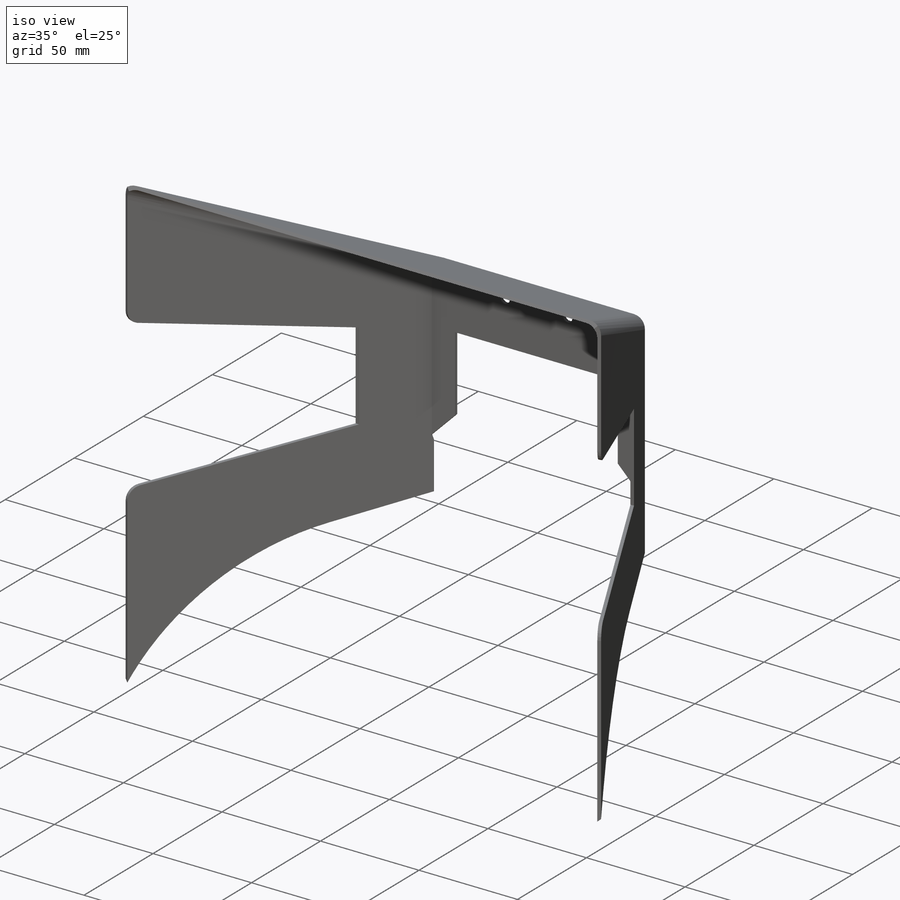
[diagram: iso view]
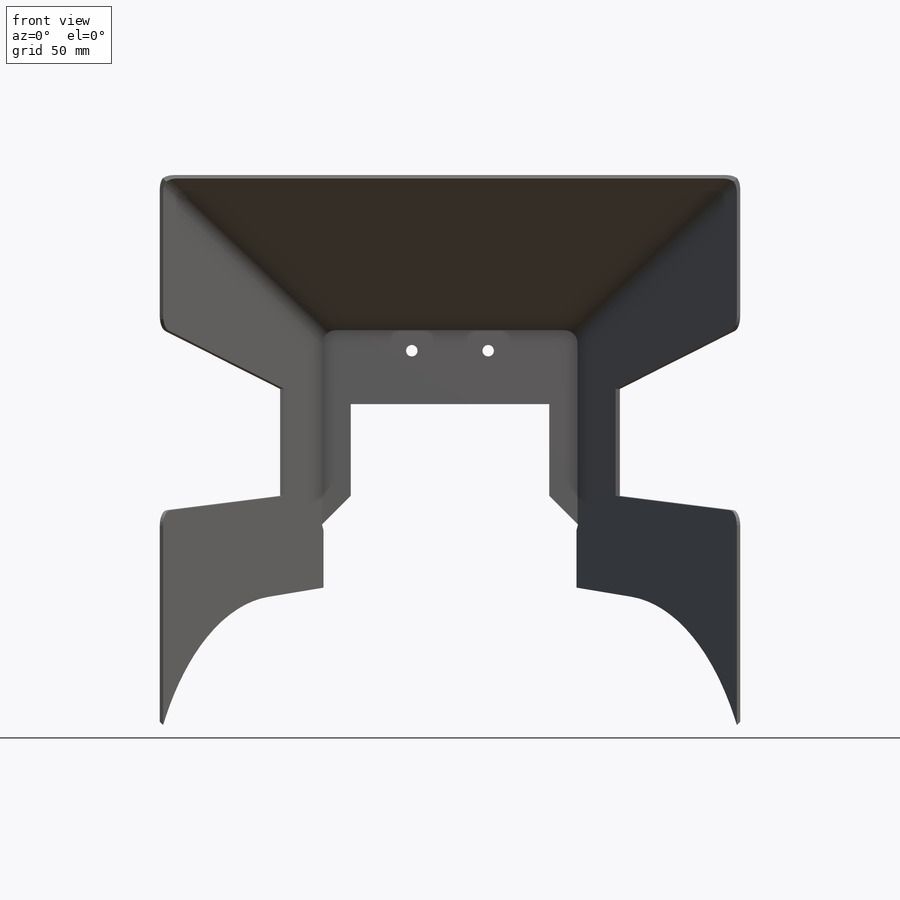
[diagram: front view]
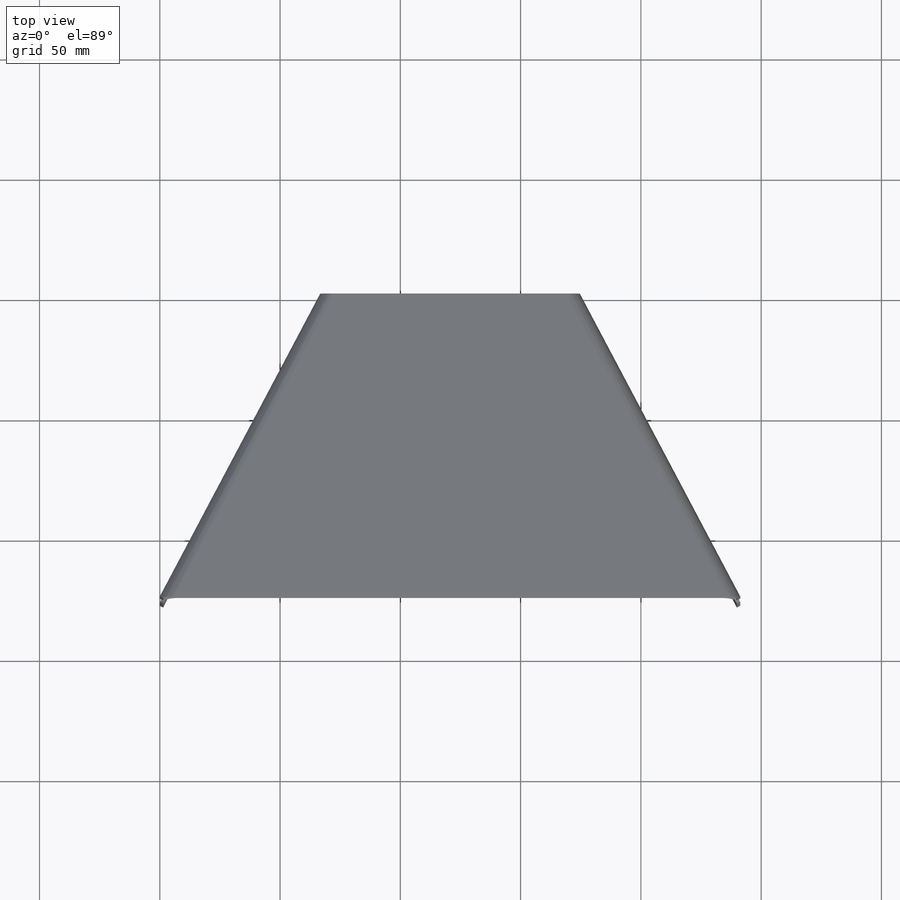
[diagram: top view]
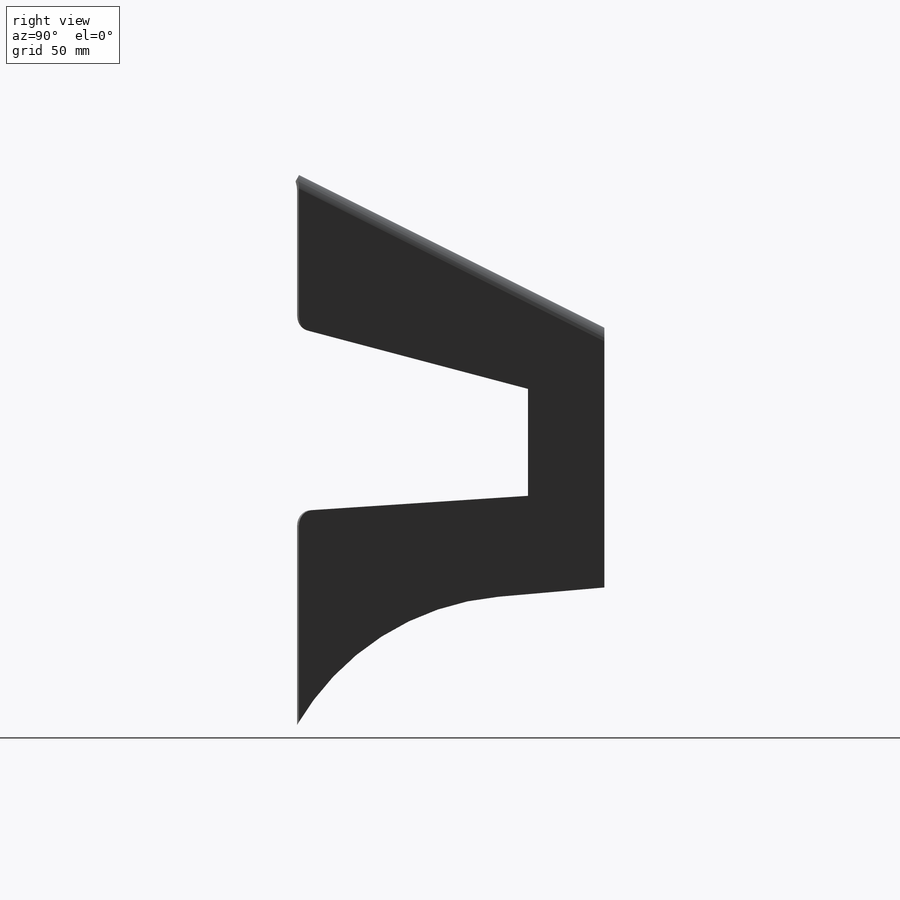
[diagram: right view]
SOLIDWORKS PART (.sldprt)
format: sldprt  version: not decoded by parser v0  size: 339,456 bytes
history: native  units: mm
features: sketch x7, cut_extrude x2, material x1, chamfer x1, fillet x1 (+13 scaffold rows collapsed)
feature tree (25):
  scaffold x13  (default folders/planes/origin — collapsed)
  material  "6061-T6 (SS)"
  sketch  "3DSketch1"  dims[D1=228.6mm D2=241.3mm D3=127.0mm D4=95.25mm D5=82.55mm D6=12.7mm D7=12.7mm D8=31.75mm D9=50.8mm]
  sketch  "3DSketch3"
  sketch  "3DSketch4"
  sketch  "3DSketch6"
  sketch  "3DSketch7"  dims[D1=1.5875mm]
  chamfer  "Chamfer1"  Distance=12.7mm
  sketch  "Sketch1"  dims[c1.D1=88.9mm c1.D2=165.1mm c1.D3=139.7mm c1.D4=95.25mm c1.D5=31.75mm c1.D6=57.15mm c1.D7=~78.007909mm c2.D7=5.0deg c2.D8=60.0deg]
  cut_extrude  "Cut-Extrude1"  [1 undecoded]
  sketch  "Sketch2"  dims[D1=4.7625mm D2=31.75mm D3=22.225mm]
  cut_extrude  "Cut-Extrude2"  [1 undecoded]
  fillet  "Fillet1"  Radius=6.35mm
decode coverage: 6 of 11 modeling features carry decoded parameters
note: ~ marks probable driven/reference dimensions
note: 2 parameter values undecoded
note: suppression state not decoded; provenance and decode notes live in map.json
